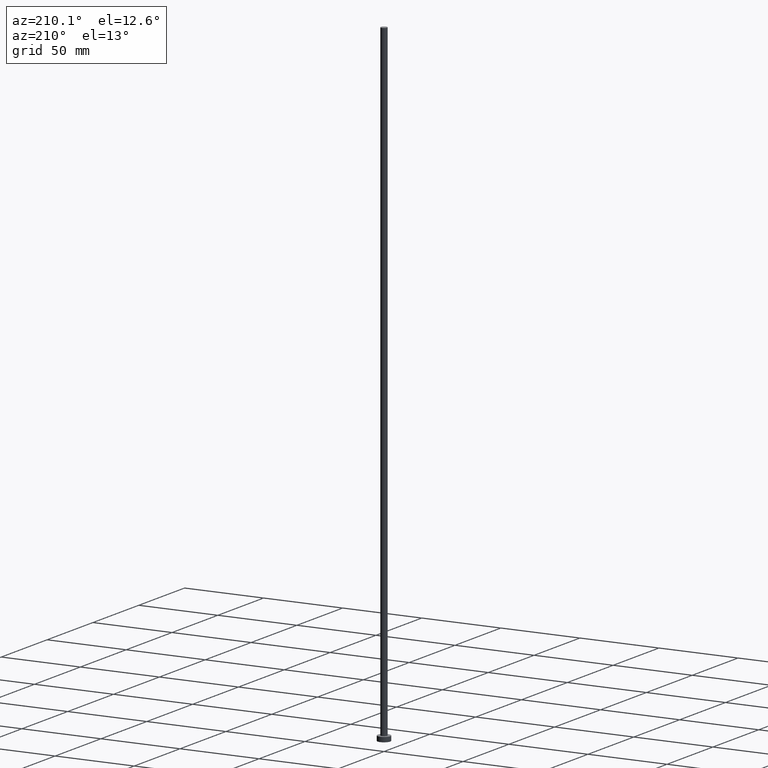
[diagram: clean part render]
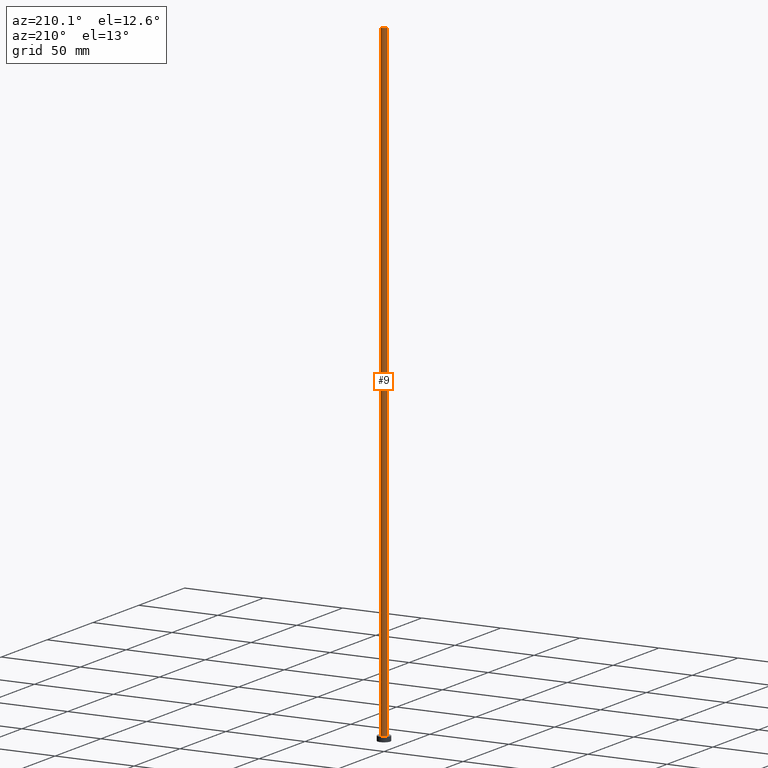
[diagram: same view with one face highlighted and labeled with its STEP entity id]
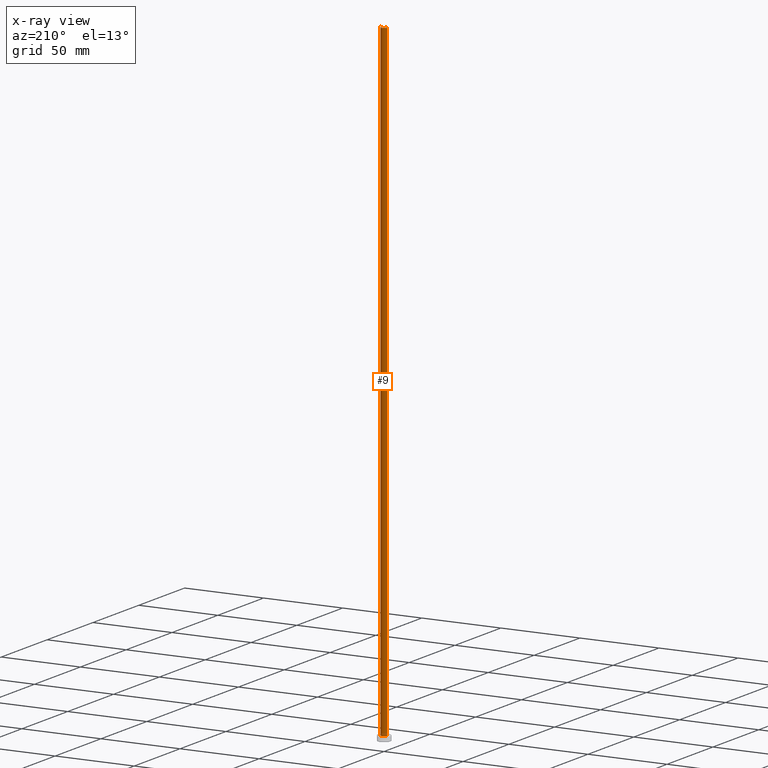
[diagram: x-ray of the same camera — body ghosted, the highlighted face saturated]
A machine part, auxiliary view. The second image highlights one B-rep face of the part: STEP entity #9.
The next image is the same camera in x-ray: the body ghosted, the highlighted face saturated — about 0% of this face is hidden behind the body in this view.
In plain terms, the highlighted cylindrical surface (edge-blend (fillet) strip) has radius 2 mm, axis along (-0, -0, -1).
Its self-contained STEP definition (entity closure, byte-faithful):
#1 = CIRCLE ( 'NONE', #149, 2.000000000000000000 ) ;
#9 = ADVANCED_FACE ( 'NONE', ( #186 ), #10, .T. ) ;
#10 = CYLINDRICAL_SURFACE ( 'NONE', #20, 2.000000000000000000 ) ;
#20 = AXIS2_PLACEMENT_3D ( 'NONE', #66, #225, #34 ) ;
#22 = CARTESIAN_POINT ( 'NONE',  ( 0.000000000000000000, 0.000000000000000000, 400.0000000000000000 ) ) ;
#25 = EDGE_CURVE ( 'NONE', #169, #147, #231, .T. ) ;
#26 = CARTESIAN_POINT ( 'NONE',  ( 2.000000000000000000, 2.449293598294706414E-16, 3.000000000000000000 ) ) ;
#27 = DIRECTION ( 'NONE',  ( 1.000000000000000000, 0.000000000000000000, 0.000000000000000000 ) ) ;
#29 = ORIENTED_EDGE ( 'NONE', *, *, #218, .T. ) ;
#34 = DIRECTION ( 'NONE',  ( -1.000000000000000000, 0.000000000000000000, 0.000000000000000000 ) ) ;
#35 = CARTESIAN_POINT ( 'NONE',  ( -2.000000000000000000, 0.000000000000000000, 400.0000000000000000 ) ) ;
#38 = CARTESIAN_POINT ( 'NONE',  ( 2.000000000000000000, 2.449293598294706414E-16, 400.0000000000000000 ) ) ;
#56 = CARTESIAN_POINT ( 'NONE',  ( 2.000000000000000000, 2.449293598294706414E-16, 400.0000000000000000 ) ) ;
#66 = CARTESIAN_POINT ( 'NONE',  ( 0.000000000000000000, 0.000000000000000000, 400.0000000000000000 ) ) ;
#67 = DIRECTION ( 'NONE',  ( -0.000000000000000000, -0.000000000000000000, -1.000000000000000000 ) ) ;
#74 = AXIS2_PLACEMENT_3D ( 'NONE', #168, #228, #108 ) ;
#75 = DIRECTION ( 'NONE',  ( 0.000000000000000000, 0.000000000000000000, 1.000000000000000000 ) ) ;
#78 = EDGE_CURVE ( 'NONE', #169, #240, #1, .T. ) ;
#84 = ORIENTED_EDGE ( 'NONE', *, *, #148, .F. ) ;
#88 = DIRECTION ( 'NONE',  ( -0.000000000000000000, -0.000000000000000000, -1.000000000000000000 ) ) ;
#97 = LINE ( 'NONE', #165, #197 ) ;
#108 = DIRECTION ( 'NONE',  ( 1.000000000000000000, 0.000000000000000000, 0.000000000000000000 ) ) ;
#129 = EDGE_LOOP ( 'NONE', ( #202, #188, #29, #84 ) ) ;
#147 = VERTEX_POINT ( 'NONE', #26 ) ;
#148 = EDGE_CURVE ( 'NONE', #240, #203, #97, .T. ) ;
#149 = AXIS2_PLACEMENT_3D ( 'NONE', #22, #75, #27 ) ;
#165 = CARTESIAN_POINT ( 'NONE',  ( -2.000000000000000000, 0.000000000000000000, 400.0000000000000000 ) ) ;
#168 = CARTESIAN_POINT ( 'NONE',  ( 0.000000000000000000, 0.000000000000000000, 3.000000000000000000 ) ) ;
#169 = VERTEX_POINT ( 'NONE', #38 ) ;
#171 = CIRCLE ( 'NONE', #74, 2.000000000000000000 ) ;
#174 = VECTOR ( 'NONE', #88, 1000.000000000000000 ) ;
#186 = FACE_OUTER_BOUND ( 'NONE', #129, .T. ) ;
#188 = ORIENTED_EDGE ( 'NONE', *, *, #25, .T. ) ;
#197 = VECTOR ( 'NONE', #67, 1000.000000000000000 ) ;
#202 = ORIENTED_EDGE ( 'NONE', *, *, #78, .F. ) ;
#203 = VERTEX_POINT ( 'NONE', #205 ) ;
#205 = CARTESIAN_POINT ( 'NONE',  ( -2.000000000000000000, 0.000000000000000000, 3.000000000000000000 ) ) ;
#218 = EDGE_CURVE ( 'NONE', #147, #203, #171, .T. ) ;
#225 = DIRECTION ( 'NONE',  ( -0.000000000000000000, -0.000000000000000000, -1.000000000000000000 ) ) ;
#228 = DIRECTION ( 'NONE',  ( 0.000000000000000000, 0.000000000000000000, 1.000000000000000000 ) ) ;
#231 = LINE ( 'NONE', #56, #174 ) ;
#240 = VERTEX_POINT ( 'NONE', #35 ) ;